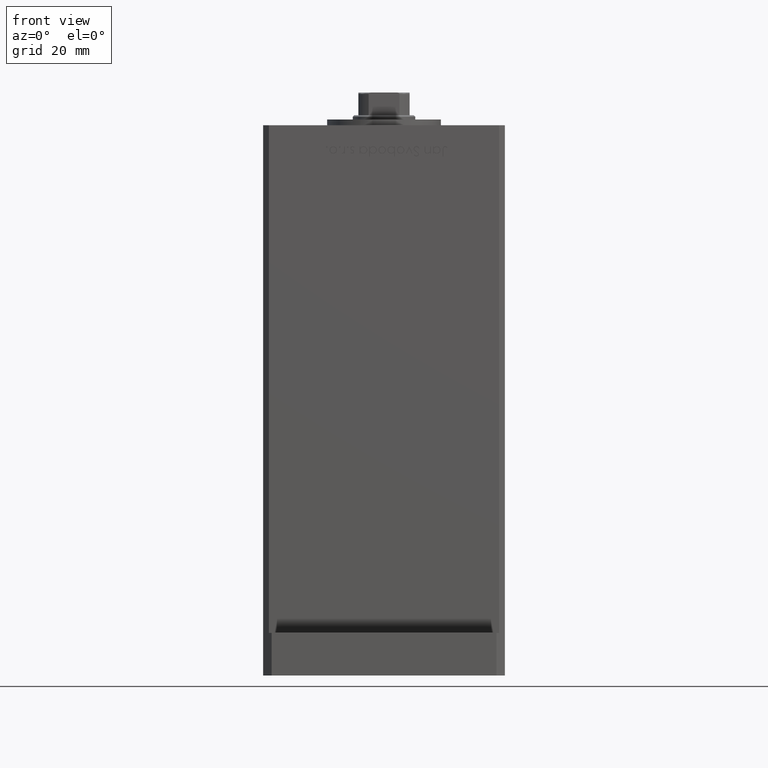
[diagram: clean part render]
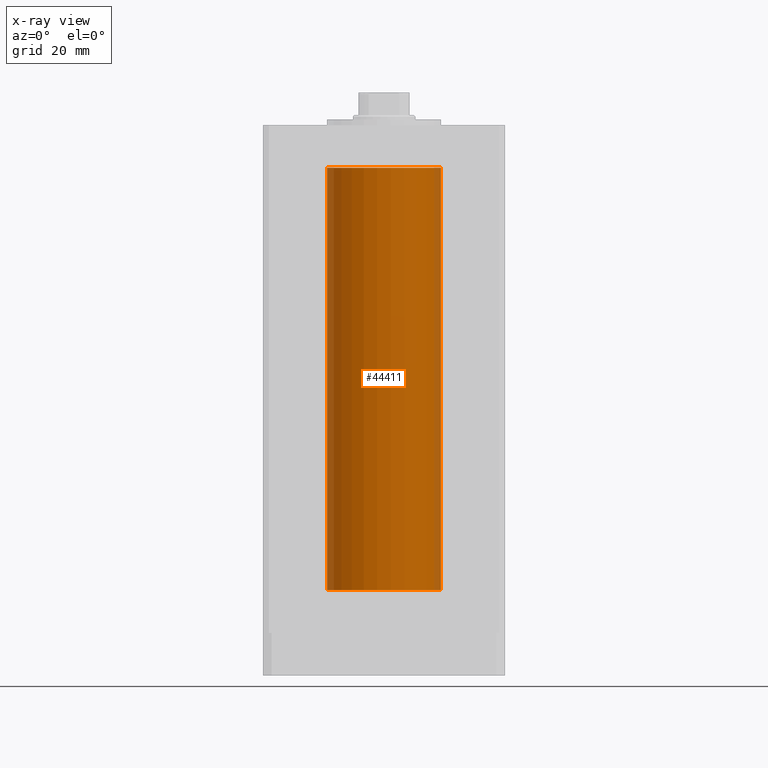
[diagram: x-ray — body ghosted, one internal face saturated and labeled with its STEP entity id]
A machine part, front view, then the same camera in x-ray: the body is ghosted and one INTERNAL B-rep face — a face not visible from any outside direction — is saturated and labeled: STEP entity #44411.
In plain terms, the highlighted cylindrical surface (partial cylindrical patch) has radius 20 mm, axis along (-0, -0, -1).
Its self-contained STEP definition (entity closure, byte-faithful):
#1141 = EDGE_CURVE ( 'NONE', #39616, #48667, #28665, .T. ) ;
#3895 = VERTEX_POINT ( 'NONE', #26004 ) ;
#6858 = CARTESIAN_POINT ( 'NONE',  ( 0.000000000000000000, 0.000000000000000000, 148.5000000000000000 ) ) ;
#13823 = CARTESIAN_POINT ( 'NONE',  ( -20.00000000000000000, 0.000000000000000000, 148.5000000000000000 ) ) ;
#14680 = DIRECTION ( 'NONE',  ( -0.000000000000000000, -0.000000000000000000, -1.000000000000000000 ) ) ;
#15968 = CARTESIAN_POINT ( 'NONE',  ( 0.000000000000000000, 0.000000000000000000, 0.000000000000000000 ) ) ;
#17575 = CIRCLE ( 'NONE', #24448, 20.00000000000000000 ) ;
#23302 = DIRECTION ( 'NONE',  ( -1.000000000000000000, 0.000000000000000000, 0.000000000000000000 ) ) ;
#24448 = AXIS2_PLACEMENT_3D ( 'NONE', #15968, #38947, #36686 ) ;
#26004 = CARTESIAN_POINT ( 'NONE',  ( 20.00000000000000000, 2.449293598294706513E-15, 0.000000000000000000 ) ) ;
#26069 = AXIS2_PLACEMENT_3D ( 'NONE', #6858, #14680, #23302 ) ;
#26126 = VERTEX_POINT ( 'NONE', #43593 ) ;
#27322 = FACE_OUTER_BOUND ( 'NONE', #47580, .T. ) ;
#28665 = CIRCLE ( 'NONE', #30413, 20.00000000000000000 ) ;
#29588 = DIRECTION ( 'NONE',  ( -0.000000000000000000, -0.000000000000000000, -1.000000000000000000 ) ) ;
#30413 = AXIS2_PLACEMENT_3D ( 'NONE', #43027, #30650, #47076 ) ;
#30650 = DIRECTION ( 'NONE',  ( -0.000000000000000000, 0.000000000000000000, 1.000000000000000000 ) ) ;
#32812 = LINE ( 'NONE', #41437, #50888 ) ;
#33679 = ORIENTED_EDGE ( 'NONE', *, *, #1141, .T. ) ;
#36686 = DIRECTION ( 'NONE',  ( 1.000000000000000000, 0.000000000000000000, 0.000000000000000000 ) ) ;
#36727 = ORIENTED_EDGE ( 'NONE', *, *, #38060, .T. ) ;
#37658 = EDGE_CURVE ( 'NONE', #39616, #26126, #52054, .T. ) ;
#38060 = EDGE_CURVE ( 'NONE', #48667, #3895, #32812, .T. ) ;
#38754 = VECTOR ( 'NONE', #42885, 1000.000000000000000 ) ;
#38947 = DIRECTION ( 'NONE',  ( -0.000000000000000000, 0.000000000000000000, 1.000000000000000000 ) ) ;
#39616 = VERTEX_POINT ( 'NONE', #13823 ) ;
#41437 = CARTESIAN_POINT ( 'NONE',  ( 20.00000000000000000, 2.449293598294706513E-15, 148.5000000000000000 ) ) ;
#41573 = CARTESIAN_POINT ( 'NONE',  ( 20.00000000000000000, 2.449293598294706513E-15, 148.5000000000000000 ) ) ;
#42885 = DIRECTION ( 'NONE',  ( -0.000000000000000000, -0.000000000000000000, -1.000000000000000000 ) ) ;
#43027 = CARTESIAN_POINT ( 'NONE',  ( 0.000000000000000000, 0.000000000000000000, 148.5000000000000000 ) ) ;
#43593 = CARTESIAN_POINT ( 'NONE',  ( -20.00000000000000000, 0.000000000000000000, 0.000000000000000000 ) ) ;
#43661 = CARTESIAN_POINT ( 'NONE',  ( -20.00000000000000000, 0.000000000000000000, 148.5000000000000000 ) ) ;
#44411 = ADVANCED_FACE ( 'NONE', ( #27322 ), #51348, .F. ) ;
#44972 = ORIENTED_EDGE ( 'NONE', *, *, #37658, .F. ) ;
#47076 = DIRECTION ( 'NONE',  ( 1.000000000000000000, 0.000000000000000000, 0.000000000000000000 ) ) ;
#47580 = EDGE_LOOP ( 'NONE', ( #33679, #36727, #51926, #44972 ) ) ;
#48667 = VERTEX_POINT ( 'NONE', #41573 ) ;
#50888 = VECTOR ( 'NONE', #29588, 1000.000000000000000 ) ;
#51348 = CYLINDRICAL_SURFACE ( 'NONE', #26069, 20.00000000000000000 ) ;
#51926 = ORIENTED_EDGE ( 'NONE', *, *, #52349, .F. ) ;
#52054 = LINE ( 'NONE', #43661, #38754 ) ;
#52349 = EDGE_CURVE ( 'NONE', #26126, #3895, #17575, .T. ) ;